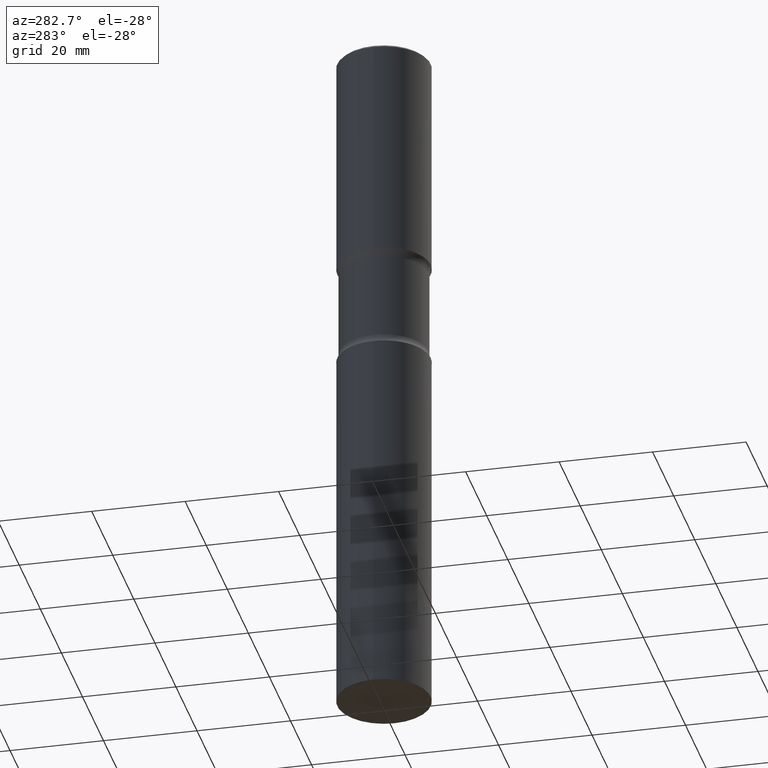
[diagram: clean part render]
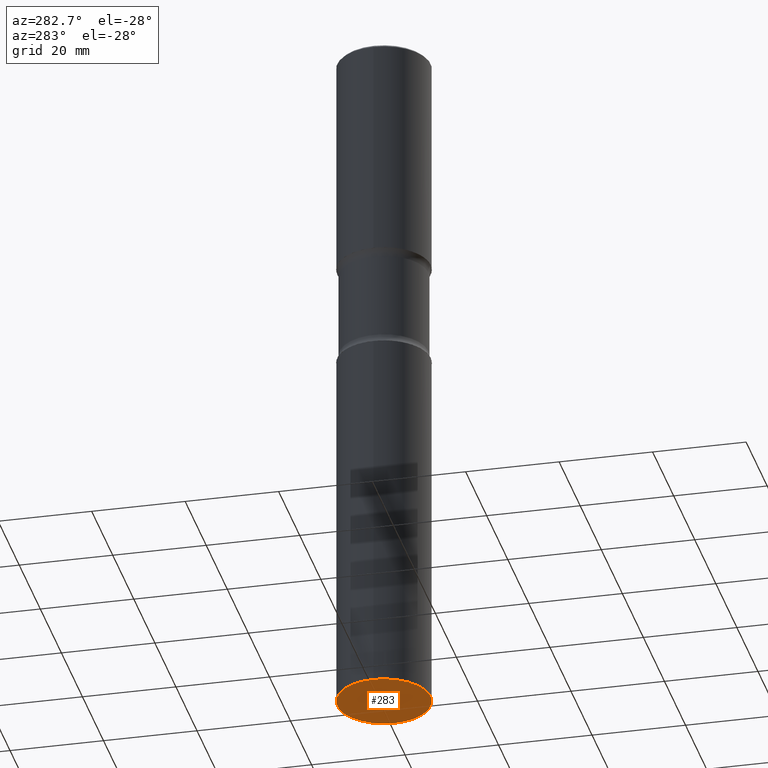
[diagram: same view with one face highlighted and labeled with its STEP entity id]
A machine part, auxiliary view. The second image highlights one B-rep face of the part: STEP entity #283.
In plain terms, the highlighted planar face has unit normal (0, -0, -1).
Its self-contained STEP definition (entity closure, byte-faithful):
#50 = DIRECTION ( 'NONE',  ( -2.445468806185136597E-29, 3.491481338843145583E-15, 1.000000000000000000 ) ) ;
#75 = VERTEX_POINT ( 'NONE', #453 ) ;
#113 = AXIS2_PLACEMENT_3D ( 'NONE', #475, #295, #124 ) ;
#124 = DIRECTION ( 'NONE',  ( 1.000000000000000000, -6.982962677686267499E-15, 0.000000000000000000 ) ) ;
#125 = CARTESIAN_POINT ( 'NONE',  ( 1.444171603492632270E-28, -2.061894304653819197E-14, -5.905499999999999972 ) ) ;
#145 = AXIS2_PLACEMENT_3D ( 'NONE', #501, #428, #245 ) ;
#192 = PLANE ( 'NONE',  #145 ) ;
#214 = EDGE_LOOP ( 'NONE', ( #231, #426 ) ) ;
#231 = ORIENTED_EDGE ( 'NONE', *, *, #455, .F. ) ;
#245 = DIRECTION ( 'NONE',  ( -1.000000000000000000, 6.982962677686265922E-15, -4.876176775795935793E-29 ) ) ;
#283 = ADVANCED_FACE ( 'NONE', ( #350 ), #192, .T. ) ;
#284 = CIRCLE ( 'NONE', #113, 0.3937000000000000499 ) ;
#295 = DIRECTION ( 'NONE',  ( -2.445468806185136597E-29, 3.491481338843145583E-15, 1.000000000000000000 ) ) ;
#329 = DIRECTION ( 'NONE',  ( 1.000000000000000000, -6.982962677686267499E-15, 0.000000000000000000 ) ) ;
#350 = FACE_OUTER_BOUND ( 'NONE', #214, .T. ) ;
#359 = AXIS2_PLACEMENT_3D ( 'NONE', #125, #50, #329 ) ;
#363 = CARTESIAN_POINT ( 'NONE',  ( -0.3937000000000000499, -1.232315148344049260E-14, -5.905499999999999972 ) ) ;
#396 = VERTEX_POINT ( 'NONE', #363 ) ;
#426 = ORIENTED_EDGE ( 'NONE', *, *, #471, .F. ) ;
#428 = DIRECTION ( 'NONE',  ( 2.438088387897960049E-29, -3.491481338843145188E-15, -1.000000000000000000 ) ) ;
#445 = CIRCLE ( 'NONE', #359, 0.3937000000000000499 ) ;
#453 = CARTESIAN_POINT ( 'NONE',  ( 0.3937000000000000499, -2.336813545274327834E-14, -5.905499999999999972 ) ) ;
#455 = EDGE_CURVE ( 'NONE', #75, #396, #445, .T. ) ;
#471 = EDGE_CURVE ( 'NONE', #396, #75, #284, .T. ) ;
#475 = CARTESIAN_POINT ( 'NONE',  ( 1.444171603492632270E-28, -2.061894304653819197E-14, -5.905499999999999972 ) ) ;
#501 = CARTESIAN_POINT ( 'NONE',  ( 1.444171603492632270E-28, -2.061894304653819197E-14, -5.905499999999999972 ) ) ;